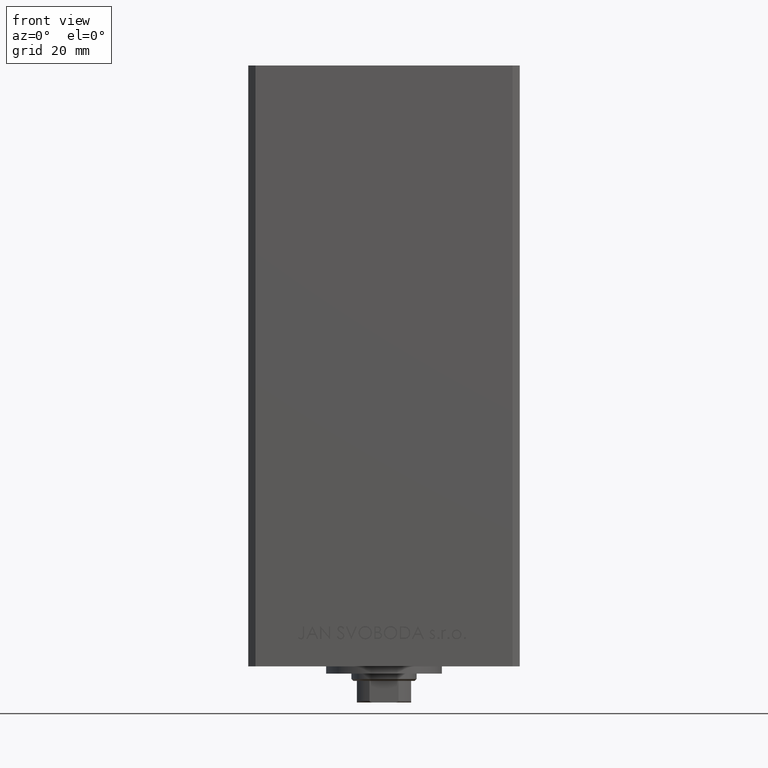
[diagram: clean part render]
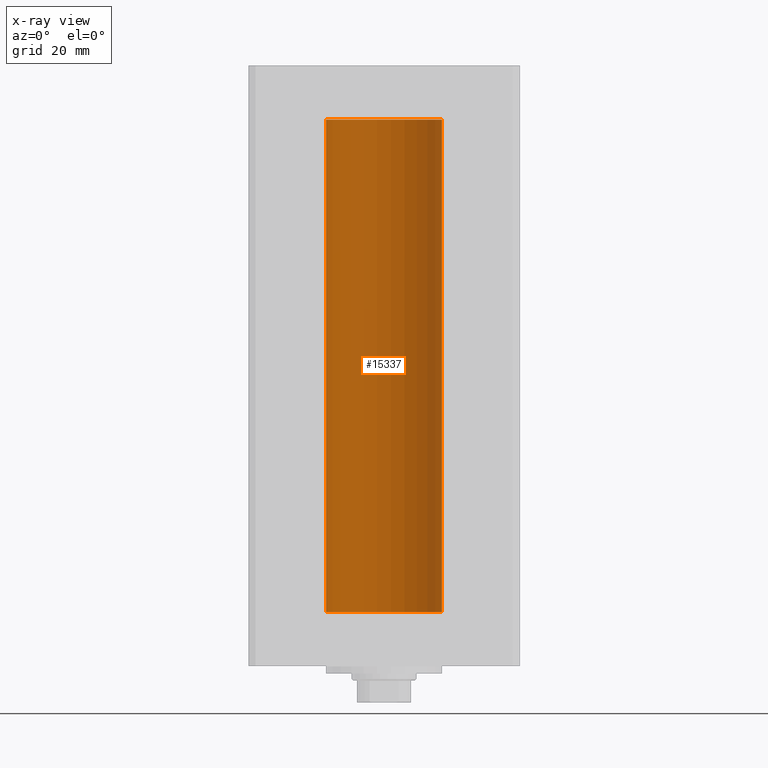
[diagram: x-ray — body ghosted, one internal face saturated and labeled with its STEP entity id]
A machine part, front view, then the same camera in x-ray: the body is ghosted and one INTERNAL B-rep face — a face not visible from any outside direction — is saturated and labeled: STEP entity #15337.
In plain terms, the highlighted cylindrical surface (partial cylindrical patch) has radius 16 mm, axis along (-0, -0, -1).
Its self-contained STEP definition (entity closure, byte-faithful):
#154 = DIRECTION ( 'NONE',  ( -0.000000000000000000, -0.000000000000000000, -1.000000000000000000 ) ) ;
#3302 = EDGE_CURVE ( 'NONE', #28796, #9363, #47957, .T. ) ;
#5171 = DIRECTION ( 'NONE',  ( 1.000000000000000000, 0.000000000000000000, 0.000000000000000000 ) ) ;
#6440 = CARTESIAN_POINT ( 'NONE',  ( 16.00000000000000000, 1.959434878635765131E-15, 136.0000000000000000 ) ) ;
#9363 = VERTEX_POINT ( 'NONE', #20254 ) ;
#10000 = AXIS2_PLACEMENT_3D ( 'NONE', #42779, #39315, #5171 ) ;
#10871 = LINE ( 'NONE', #6440, #12656 ) ;
#10944 = EDGE_CURVE ( 'NONE', #26699, #34644, #42387, .T. ) ;
#12302 = FACE_OUTER_BOUND ( 'NONE', #25954, .T. ) ;
#12363 = AXIS2_PLACEMENT_3D ( 'NONE', #45256, #29903, #25943 ) ;
#12656 = VECTOR ( 'NONE', #13606, 1000.000000000000000 ) ;
#13606 = DIRECTION ( 'NONE',  ( -0.000000000000000000, -0.000000000000000000, -1.000000000000000000 ) ) ;
#15288 = CARTESIAN_POINT ( 'NONE',  ( 0.000000000000000000, 0.000000000000000000, 136.0000000000000000 ) ) ;
#15337 = ADVANCED_FACE ( 'NONE', ( #12302 ), #26669, .F. ) ;
#17267 = AXIS2_PLACEMENT_3D ( 'NONE', #15288, #30863, #34588 ) ;
#18565 = VECTOR ( 'NONE', #154, 1000.000000000000000 ) ;
#20254 = CARTESIAN_POINT ( 'NONE',  ( -16.00000000000000000, 0.000000000000000000, 0.000000000000000000 ) ) ;
#24299 = EDGE_CURVE ( 'NONE', #26699, #28796, #10871, .T. ) ;
#24326 = ORIENTED_EDGE ( 'NONE', *, *, #24299, .F. ) ;
#25943 = DIRECTION ( 'NONE',  ( 1.000000000000000000, 0.000000000000000000, 0.000000000000000000 ) ) ;
#25954 = EDGE_LOOP ( 'NONE', ( #24326, #28539, #32501, #36162 ) ) ;
#26669 = CYLINDRICAL_SURFACE ( 'NONE', #17267, 16.00000000000000000 ) ;
#26699 = VERTEX_POINT ( 'NONE', #44703 ) ;
#28539 = ORIENTED_EDGE ( 'NONE', *, *, #10944, .T. ) ;
#28796 = VERTEX_POINT ( 'NONE', #45892 ) ;
#29903 = DIRECTION ( 'NONE',  ( -0.000000000000000000, 0.000000000000000000, 1.000000000000000000 ) ) ;
#30863 = DIRECTION ( 'NONE',  ( -0.000000000000000000, -0.000000000000000000, -1.000000000000000000 ) ) ;
#32501 = ORIENTED_EDGE ( 'NONE', *, *, #47472, .T. ) ;
#34588 = DIRECTION ( 'NONE',  ( -1.000000000000000000, 0.000000000000000000, 0.000000000000000000 ) ) ;
#34644 = VERTEX_POINT ( 'NONE', #34753 ) ;
#34753 = CARTESIAN_POINT ( 'NONE',  ( -16.00000000000000000, 0.000000000000000000, 136.0000000000000000 ) ) ;
#34767 = CARTESIAN_POINT ( 'NONE',  ( -16.00000000000000000, 0.000000000000000000, 136.0000000000000000 ) ) ;
#36162 = ORIENTED_EDGE ( 'NONE', *, *, #3302, .F. ) ;
#39315 = DIRECTION ( 'NONE',  ( -0.000000000000000000, 0.000000000000000000, 1.000000000000000000 ) ) ;
#42387 = CIRCLE ( 'NONE', #10000, 16.00000000000000000 ) ;
#42440 = LINE ( 'NONE', #34767, #18565 ) ;
#42779 = CARTESIAN_POINT ( 'NONE',  ( 0.000000000000000000, 0.000000000000000000, 136.0000000000000000 ) ) ;
#44703 = CARTESIAN_POINT ( 'NONE',  ( 16.00000000000000000, 1.959434878635765131E-15, 136.0000000000000000 ) ) ;
#45256 = CARTESIAN_POINT ( 'NONE',  ( 0.000000000000000000, 0.000000000000000000, 0.000000000000000000 ) ) ;
#45892 = CARTESIAN_POINT ( 'NONE',  ( 16.00000000000000000, 1.959434878635765131E-15, 0.000000000000000000 ) ) ;
#47472 = EDGE_CURVE ( 'NONE', #34644, #9363, #42440, .T. ) ;
#47957 = CIRCLE ( 'NONE', #12363, 16.00000000000000000 ) ;